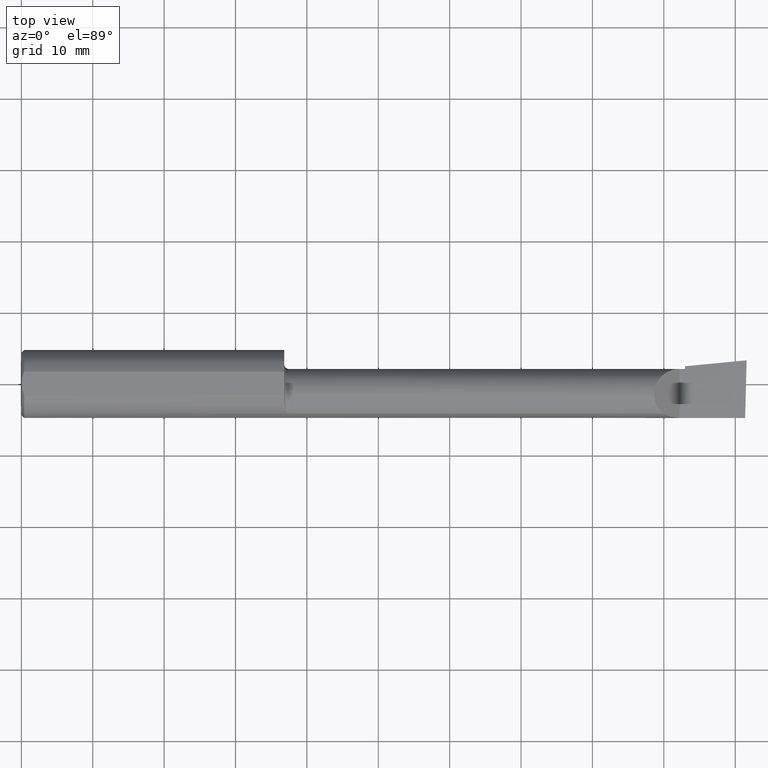
[diagram: clean part render]
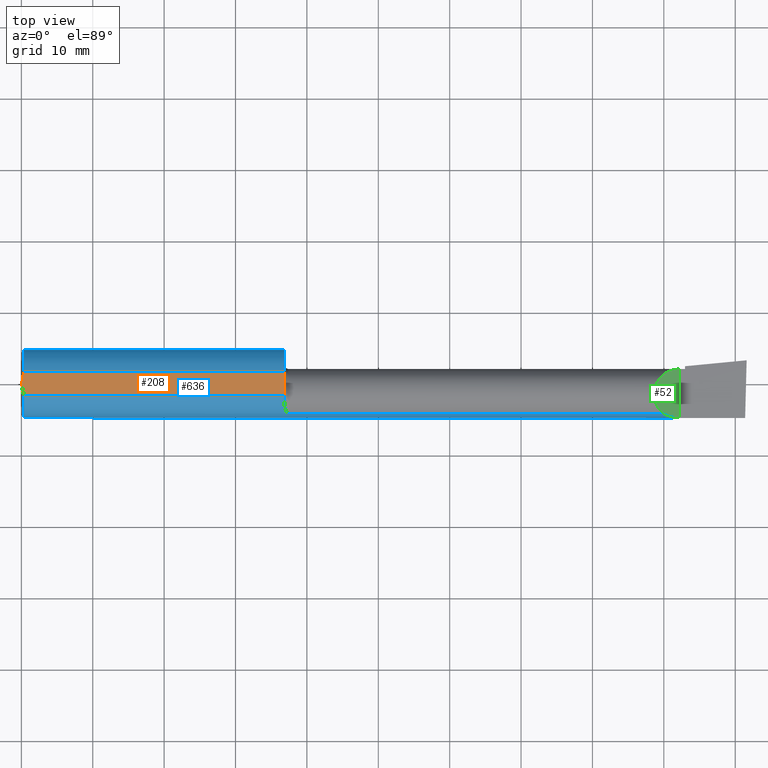
[diagram: same view with three faces highlighted in distinct colors, each labeled with its STEP entity id]
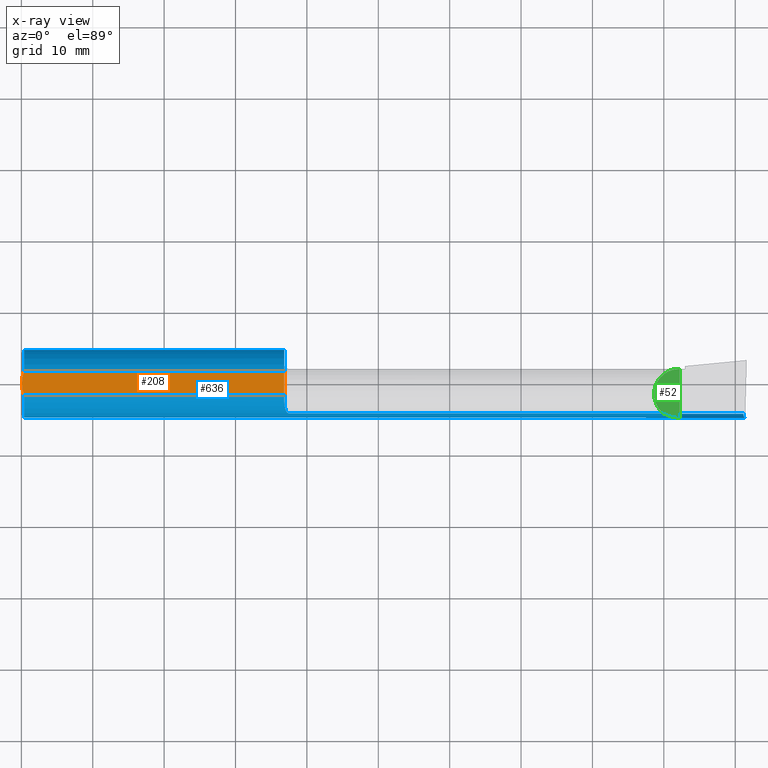
[diagram: x-ray of the same camera — body ghosted, the three highlighted faces saturated]
A machine part, top view with three faces highlighted in distinct colors.
The next image is the same camera in x-ray (body ghosted, the three faces saturated) — at least one of them is partly hidden behind the body in this view.
Their STEP definitions:

[orange] entity #208 — the highlighted planar face has unit normal (0, -0, -1).
#12 = CARTESIAN_POINT ( 'NONE',  ( 0.01499999999999997863, -0.06597272163553657975, 0.1753499999999999781 ) ) ;
#14 = DIRECTION ( 'NONE',  ( 0.000000000000000000, -1.438723400918613551E-16, -1.000000000000000000 ) ) ;
#26 = CARTESIAN_POINT ( 'NONE',  ( 0.008244775919947424855, 0.04453482769755855164, 0.1753499999999999504 ) ) ;
#56 = DIRECTION ( 'NONE',  ( 0.000000000000000000, 1.000000000000000000, -1.438723400918613551E-16 ) ) ;
#72 = ORIENTED_EDGE ( 'NONE', *, *, #648, .F. ) ;
#75 = CARTESIAN_POINT ( 'NONE',  ( 0.003000000000000169632, 0.01127363201155560934, 0.1753499999999999781 ) ) ;
#81 = VERTEX_POINT ( 'NONE', #200 ) ;
#107 = LINE ( 'NONE', #461, #186 ) ;
#113 = FACE_OUTER_BOUND ( 'NONE', #235, .T. ) ;
#116 = CARTESIAN_POINT ( 'NONE',  ( 0.01128414053810044941, -0.05542038647445821781, 0.1753499999999999781 ) ) ;
#130 = DIRECTION ( 'NONE',  ( 4.268512490100411279E-18, -1.000000000000000000, 1.438723400918613551E-16 ) ) ;
#186 = VECTOR ( 'NONE', #505, 39.37007874015748143 ) ;
#194 = CARTESIAN_POINT ( 'NONE',  ( 1.450000000000000178, 0.06597272163553663527, 0.1753499999999999781 ) ) ;
#200 = CARTESIAN_POINT ( 'NONE',  ( 1.450000000000000178, -0.06597272163553666302, 0.1753499999999999781 ) ) ;
#203 = EDGE_CURVE ( 'NONE', #430, #406, #107, .T. ) ;
#208 = ADVANCED_FACE ( 'NONE', ( #113 ), #458, .F. ) ;
#227 = ORIENTED_EDGE ( 'NONE', *, *, #203, .F. ) ;
#235 = EDGE_LOOP ( 'NONE', ( #439, #227, #647, #72, #517 ) ) ;
#247 = DIRECTION ( 'NONE',  ( -1.000000000000000000, -0.000000000000000000, -0.000000000000000000 ) ) ;
#279 = CARTESIAN_POINT ( 'NONE',  ( 0.004115035183746292881, 0.02255629470626744487, 0.1753499999999999781 ) ) ;
#284 = CARTESIAN_POINT ( 'NONE',  ( 1.450000000000000178, 0.2373500000000000332, 0.1753499999999999504 ) ) ;
#299 = EDGE_CURVE ( 'NONE', #406, #81, #624, .T. ) ;
#314 = CARTESIAN_POINT ( 'NONE',  ( 0.004093196532652216939, -0.02240707710020816909, 0.1753499999999999504 ) ) ;
#318 = VECTOR ( 'NONE', #247, 39.37007874015748143 ) ;
#333 = CARTESIAN_POINT ( 'NONE',  ( 0.01125230581755086272, 0.05532998191409922023, 0.1753500000000000059 ) ) ;
#339 = EDGE_CURVE ( 'NONE', #344, #430, #393, .T. ) ;
#344 = VERTEX_POINT ( 'NONE', #484 ) ;
#370 = EDGE_CURVE ( 'NONE', #81, #485, #374, .T. ) ;
#372 = AXIS2_PLACEMENT_3D ( 'NONE', #415, #14, #56 ) ;
#374 = LINE ( 'NONE', #570, #318 ) ;
#393 = B_SPLINE_CURVE_WITH_KNOTS ( 'NONE', 3,
 ( #477, #75, #279, #26, #333, #481 ),
 .UNSPECIFIED., .F., .F.,
 ( 4, 2, 4 ),
 ( 0.003480013901590607410, 0.004330767971208083697, 0.005181522040825559984 ),
 .UNSPECIFIED. ) ;
#406 = VERTEX_POINT ( 'NONE', #194 ) ;
#414 = CARTESIAN_POINT ( 'NONE',  ( 0.008227791779583789808, -0.04447712204611815878, 0.1753499999999999781 ) ) ;
#415 = CARTESIAN_POINT ( 'NONE',  ( 4.000000000000000000, 0.2373500000000000332, 0.1753499999999999504 ) ) ;
#430 = VERTEX_POINT ( 'NONE', #438 ) ;
#438 = CARTESIAN_POINT ( 'NONE',  ( 0.01499999999999999424, 0.06597272163553663527, 0.1753499999999999781 ) ) ;
#439 = ORIENTED_EDGE ( 'NONE', *, *, #299, .F. ) ;
#449 = CARTESIAN_POINT ( 'NONE',  ( 0.003000000000000218638, 2.334609556160449697E-17, 0.1753499999999999781 ) ) ;
#458 = PLANE ( 'NONE',  #372 ) ;
#461 = CARTESIAN_POINT ( 'NONE',  ( 0.000000000000000000, 0.06597272163553663527, 0.1753499999999999781 ) ) ;
#477 = CARTESIAN_POINT ( 'NONE',  ( 0.003000000000000218638, 2.334609556160449697E-17, 0.1753499999999999781 ) ) ;
#481 = CARTESIAN_POINT ( 'NONE',  ( 0.01499999999999999424, 0.06597272163553663527, 0.1753499999999999781 ) ) ;
#483 = B_SPLINE_CURVE_WITH_KNOTS ( 'NONE', 3,
 ( #12, #116, #414, #314, #514, #449 ),
 .UNSPECIFIED., .F., .F.,
 ( 4, 2, 4 ),
 ( 0.001779942938356815062, 0.002629978419973711019, 0.003480013901590607410 ),
 .UNSPECIFIED. ) ;
#484 = CARTESIAN_POINT ( 'NONE',  ( 0.003000000000000218638, 2.334609556160449697E-17, 0.1753499999999999781 ) ) ;
#485 = VERTEX_POINT ( 'NONE', #593 ) ;
#505 = DIRECTION ( 'NONE',  ( 1.000000000000000000, 0.000000000000000000, 0.000000000000000000 ) ) ;
#514 = CARTESIAN_POINT ( 'NONE',  ( 0.003000000000000172667, -0.01126410975715121283, 0.1753500000000000059 ) ) ;
#517 = ORIENTED_EDGE ( 'NONE', *, *, #370, .F. ) ;
#537 = VECTOR ( 'NONE', #130, 39.37007874015748143 ) ;
#570 = CARTESIAN_POINT ( 'NONE',  ( 0.000000000000000000, -0.06597272163553657975, 0.1753499999999999781 ) ) ;
#593 = CARTESIAN_POINT ( 'NONE',  ( 0.01499999999999997863, -0.06597272163553657975, 0.1753499999999999781 ) ) ;
#624 = LINE ( 'NONE', #284, #537 ) ;
#647 = ORIENTED_EDGE ( 'NONE', *, *, #339, .F. ) ;
#648 = EDGE_CURVE ( 'NONE', #485, #344, #483, .T. ) ;

[blue] entity #636 — the highlighted cylindrical surface (edge-blend (fillet) strip) has radius 4.7587 mm, axis along (-1, -0, -0).
#1 = DIRECTION ( 'NONE',  ( 0.000000000000000000, 1.000000000000000000, 0.000000000000000000 ) ) ;
#22 = CARTESIAN_POINT ( 'NONE',  ( 2.567499999999999893, -0.1635956445993030639, 0.09130436773856169530 ) ) ;
#23 = AXIS2_PLACEMENT_3D ( 'NONE', #399, #215, #1 ) ;
#31 = VERTEX_POINT ( 'NONE', #441 ) ;
#35 = EDGE_CURVE ( 'NONE', #501, #383, #623, .T. ) ;
#61 = FACE_OUTER_BOUND ( 'NONE', #466, .T. ) ;
#65 = CARTESIAN_POINT ( 'NONE',  ( 1.451891754936545098, -0.1247344934163571728, 0.1400506178720497541 ) ) ;
#68 = CARTESIAN_POINT ( 'NONE',  ( 3.566758987970638728, -0.1792580844883770730, 0.06324101202936149857 ) ) ;
#69 = ORIENTED_EDGE ( 'NONE', *, *, #524, .F. ) ;
#71 = CARTESIAN_POINT ( 'NONE',  ( 3.597861799102314517, -0.1873500000000000165, 0.03213820089768516797 ) ) ;
#81 = VERTEX_POINT ( 'NONE', #200 ) ;
#82 = CARTESIAN_POINT ( 'NONE',  ( 1.467975941902153192, -0.1612443294219083612, -0.09540922431498155554 ) ) ;
#89 = CIRCLE ( 'NONE', #23, 0.1873499999999999888 ) ;
#93 = ORIENTED_EDGE ( 'NONE', *, *, #495, .F. ) ;
#95 = VERTEX_POINT ( 'NONE', #205 ) ;
#107 = LINE ( 'NONE', #461, #186 ) ;
#112 = CARTESIAN_POINT ( 'NONE',  ( 0.000000000000000000, 0.000000000000000000, 0.000000000000000000 ) ) ;
#133 = CARTESIAN_POINT ( 'NONE',  ( 1.450384441902395238, -0.1115101367984843439, -0.1507946173152220348 ) ) ;
#145 = AXIS2_PLACEMENT_3D ( 'NONE', #112, #265, #460 ) ;
#155 = ORIENTED_EDGE ( 'NONE', *, *, #330, .F. ) ;
#158 = CARTESIAN_POINT ( 'NONE',  ( 1.450000000000000178, -0.1045012500212958440, 0.1557348687830031608 ) ) ;
#162 = ORIENTED_EDGE ( 'NONE', *, *, #217, .F. ) ;
#167 = EDGE_CURVE ( 'NONE', #482, #285, #305, .T. ) ;
#168 = LINE ( 'NONE', #360, #578 ) ;
#171 = CARTESIAN_POINT ( 'NONE',  ( 3.629999999999999893, -0.1873499999999999888, -1.383850883036508279E-16 ) ) ;
#172 = CIRCLE ( 'NONE', #516, 0.1873499999999999888 ) ;
#186 = VECTOR ( 'NONE', #505, 39.37007874015748143 ) ;
#194 = CARTESIAN_POINT ( 'NONE',  ( 1.450000000000000178, 0.06597272163553663527, 0.1753499999999999781 ) ) ;
#200 = CARTESIAN_POINT ( 'NONE',  ( 1.450000000000000178, -0.06597272163553666302, 0.1753499999999999781 ) ) ;
#201 = DIRECTION ( 'NONE',  ( -1.000000000000000000, -0.000000000000000000, -0.000000000000000000 ) ) ;
#203 = EDGE_CURVE ( 'NONE', #430, #406, #107, .T. ) ;
#205 = CARTESIAN_POINT ( 'NONE',  ( 3.538695632261437130, -0.1635956445993028974, 0.09130436773856195898 ) ) ;
#210 = ORIENTED_EDGE ( 'NONE', *, *, #283, .F. ) ;
#212 = CARTESIAN_POINT ( 'NONE',  ( 1.453025912205683667, -0.1310442973014118717, 0.1341609063345039488 ) ) ;
#215 = DIRECTION ( 'NONE',  ( 1.000000000000000000, 4.268512490100411279E-18, 0.000000000000000000 ) ) ;
#217 = EDGE_CURVE ( 'NONE', #81, #482, #172, .T. ) ;
#220 = DIRECTION ( 'NONE',  ( 1.000000000000000000, 4.268512490100411279E-18, 0.000000000000000000 ) ) ;
#223 = CARTESIAN_POINT ( 'NONE',  ( 1.466855994529494112, -0.1603175578889972364, 0.09696363432848399688 ) ) ;
#226 = CARTESIAN_POINT ( 'NONE',  ( 1.458068207442170250, -0.1478915270140213900, -0.1153063024254919050 ) ) ;
#230 = EDGE_CURVE ( 'NONE', #459, #95, #595, .T. ) ;
#236 = CARTESIAN_POINT ( 'NONE',  ( 3.538695632261437130, -0.1635956445993028974, 0.09130436773856195898 ) ) ;
#241 = CARTESIAN_POINT ( 'NONE',  ( 3.981080296960509468, -0.1635956445993030639, -0.09130436773856169530 ) ) ;
#244 = DIRECTION ( 'NONE',  ( -1.000000000000000000, -0.000000000000000000, -0.000000000000000000 ) ) ;
#247 = DIRECTION ( 'NONE',  ( -1.000000000000000000, -0.000000000000000000, -0.000000000000000000 ) ) ;
#249 = VECTOR ( 'NONE', #244, 39.37007874015748143 ) ;
#255 = CARTESIAN_POINT ( 'NONE',  ( 1.468001859868116821, -0.1612625562479374497, 0.09537826053888119604 ) ) ;
#259 = DIRECTION ( 'NONE',  ( 0.000000000000000000, 1.000000000000000000, 0.000000000000000000 ) ) ;
#263 = CARTESIAN_POINT ( 'NONE',  ( 1.450000000000000178, -0.09715400696864165409, 0.1601908905959921192 ) ) ;
#265 = DIRECTION ( 'NONE',  ( -1.000000000000000000, -0.000000000000000000, -0.000000000000000000 ) ) ;
#268 = VECTOR ( 'NONE', #627, 39.37007874015748143 ) ;
#270 = CARTESIAN_POINT ( 'NONE',  ( 1.462204638458736827, -0.1550630761760526943, 0.1052254855377557363 ) ) ;
#283 = EDGE_CURVE ( 'NONE', #285, #95, #426, .T. ) ;
#285 = VERTEX_POINT ( 'NONE', #321 ) ;
#289 = CIRCLE ( 'NONE', #588, 0.1873499999999999888 ) ;
#290 = CARTESIAN_POINT ( 'NONE',  ( 3.991672876940992154, -0.1873499999999999888, -1.700367819150454743E-16 ) ) ;
#295 = CARTESIAN_POINT ( 'NONE',  ( 3.991672876940992154, -0.1873499999999999888, -1.700367819150454743E-16 ) ) ;
#298 = DIRECTION ( 'NONE',  ( 0.000000000000000000, 0.000000000000000000, 1.000000000000000000 ) ) ;
#301 = CYLINDRICAL_SURFACE ( 'NONE', #145, 0.1873499999999999888 ) ;
#302 = CARTESIAN_POINT ( 'NONE',  ( 1.456142321956750862, -0.1426151417460934934, 0.1217894822571228691 ) ) ;
#303 = DIRECTION ( 'NONE',  ( -1.000000000000000000, -4.268512490100411279E-18, -0.000000000000000000 ) ) ;
#305 = B_SPLINE_CURVE_WITH_KNOTS ( 'NONE', 3,
 ( #263, #158, #316, #65, #212, #302, #358, #270, #408, #223, #255, #420, #361, #312 ),
 .UNSPECIFIED., .F., .F.,
 ( 4, 2, 2, 2, 2, 2, 4 ),
 ( 0.0002471551878304273061, 0.0008987327522055692762, 0.001550310316580711355, 0.002201887880955853000, 0.002527676663143422955, 0.002690571054237208149, 0.002853465445330993343 ),
 .UNSPECIFIED. ) ;
#311 = DIRECTION ( 'NONE',  ( -1.000000000000000000, -0.000000000000000000, -0.000000000000000000 ) ) ;
#312 = CARTESIAN_POINT ( 'NONE',  ( 1.474999999999999867, -0.1635956445993032859, 0.09130436773856114019 ) ) ;
#316 = CARTESIAN_POINT ( 'NONE',  ( 1.450383728133729955, -0.1114837668894155670, 0.1508119329971093214 ) ) ;
#318 = VECTOR ( 'NONE', #247, 39.37007874015748143 ) ;
#319 = AXIS2_PLACEMENT_3D ( 'NONE', #558, #311, #510 ) ;
#321 = CARTESIAN_POINT ( 'NONE',  ( 1.474999999999999867, -0.1635956445993032859, 0.09130436773856114019 ) ) ;
#328 = CARTESIAN_POINT ( 'NONE',  ( 1.470881499230869860, -0.1628722075910995493, -0.09260290410947796813 ) ) ;
#329 = ORIENTED_EDGE ( 'NONE', *, *, #565, .F. ) ;
#330 = EDGE_CURVE ( 'NONE', #527, #31, #628, .T. ) ;
#336 = CARTESIAN_POINT ( 'NONE',  ( 1.474999999999999867, -0.1635956445993035080, -0.09130436773856089039 ) ) ;
#348 = CARTESIAN_POINT ( 'NONE',  ( 3.981080296960509468, -0.1635956445993030639, -0.09130436773856169530 ) ) ;
#349 = CARTESIAN_POINT ( 'NONE',  ( 0.01499999999999999424, 0.000000000000000000, -0.1873499999999999888 ) ) ;
#352 = CARTESIAN_POINT ( 'NONE',  ( 3.629999999999999893, -0.1873499999999999888, -1.383850883036508279E-16 ) ) ;
#353 = CARTESIAN_POINT ( 'NONE',  ( 3.987725449370725261, -0.1873499999999999610, -0.03213820089768520960 ) ) ;
#358 = CARTESIAN_POINT ( 'NONE',  ( 1.458072954143140088, -0.1479074971576202768, 0.1152872342625226587 ) ) ;
#360 = CARTESIAN_POINT ( 'NONE',  ( 2.567499999999999893, -0.1635956445993030639, -0.09130436773856169530 ) ) ;
#361 = CARTESIAN_POINT ( 'NONE',  ( 1.472800914500664859, -0.1635956445997551467, 0.09130436773775187087 ) ) ;
#366 = ORIENTED_EDGE ( 'NONE', *, *, #630, .F. ) ;
#370 = EDGE_CURVE ( 'NONE', #81, #485, #374, .T. ) ;
#374 = LINE ( 'NONE', #570, #318 ) ;
#375 = ORIENTED_EDGE ( 'NONE', *, *, #35, .T. ) ;
#379 = CARTESIAN_POINT ( 'NONE',  ( 1.450000000000000178, -0.09715400696864165409, -0.1601908905959921192 ) ) ;
#382 = CARTESIAN_POINT ( 'NONE',  ( 1.466814909379088760, -0.1602818635245161771, -0.09702252612905236384 ) ) ;
#383 = VERTEX_POINT ( 'NONE', #295 ) ;
#391 = CARTESIAN_POINT ( 'NONE',  ( 1.565719721143680372E-32, -0.1873499999999999610, 1.790477306702064235E-16 ) ) ;
#394 = LINE ( 'NONE', #391, #249 ) ;
#396 = EDGE_CURVE ( 'NONE', #383, #459, #394, .T. ) ;
#399 = CARTESIAN_POINT ( 'NONE',  ( 1.450000000000000178, 0.000000000000000000, 0.000000000000000000 ) ) ;
#406 = VERTEX_POINT ( 'NONE', #194 ) ;
#408 = CARTESIAN_POINT ( 'NONE',  ( 1.463764108097883376, -0.1573043405450774979, 0.1018329020719630079 ) ) ;
#420 = CARTESIAN_POINT ( 'NONE',  ( 1.470903862568969211, -0.1628809688430624958, 0.09258733509388421268 ) ) ;
#426 = LINE ( 'NONE', #22, #268 ) ;
#427 = ORIENTED_EDGE ( 'NONE', *, *, #396, .T. ) ;
#429 = CARTESIAN_POINT ( 'NONE',  ( 1.451903396790307443, -0.1248165254919065270, -0.1399798634953942911 ) ) ;
#430 = VERTEX_POINT ( 'NONE', #438 ) ;
#438 = CARTESIAN_POINT ( 'NONE',  ( 0.01499999999999999424, 0.06597272163553663527, 0.1753499999999999781 ) ) ;
#441 = CARTESIAN_POINT ( 'NONE',  ( 1.450000000000000178, -0.09715400696864165409, -0.1601908905959921192 ) ) ;
#453 = ORIENTED_EDGE ( 'NONE', *, *, #203, .T. ) ;
#456 = VERTEX_POINT ( 'NONE', #349 ) ;
#459 = VERTEX_POINT ( 'NONE', #352 ) ;
#460 = DIRECTION ( 'NONE',  ( 0.000000000000000000, 0.000000000000000000, 1.000000000000000000 ) ) ;
#461 = CARTESIAN_POINT ( 'NONE',  ( 0.000000000000000000, 0.06597272163553663527, 0.1753499999999999781 ) ) ;
#466 = EDGE_LOOP ( 'NONE', ( #329, #375, #427, #549, #210, #582, #162, #469, #366, #93, #453, #69, #155 ) ) ;
#468 = CARTESIAN_POINT ( 'NONE',  ( 1.463743174082349663, -0.1572750258711012872, -0.1018777902325207346 ) ) ;
#469 = ORIENTED_EDGE ( 'NONE', *, *, #370, .T. ) ;
#472 = CARTESIAN_POINT ( 'NONE',  ( 1.462184598714912909, -0.1550322129197700405, -0.1052705638704077434 ) ) ;
#482 = VERTEX_POINT ( 'NONE', #544 ) ;
#485 = VERTEX_POINT ( 'NONE', #593 ) ;
#495 = EDGE_CURVE ( 'NONE', #430, #456, #289, .T. ) ;
#501 = VERTEX_POINT ( 'NONE', #241 ) ;
#505 = DIRECTION ( 'NONE',  ( 1.000000000000000000, 0.000000000000000000, 0.000000000000000000 ) ) ;
#508 = CARTESIAN_POINT ( 'NONE',  ( 1.474999999999999867, -0.1635956445993035080, -0.09130436773856089039 ) ) ;
#509 = CARTESIAN_POINT ( 'NONE',  ( 1.450000000000000178, 0.000000000000000000, 0.000000000000000000 ) ) ;
#510 = DIRECTION ( 'NONE',  ( 0.000000000000000000, 0.000000000000000000, 1.000000000000000000 ) ) ;
#516 = AXIS2_PLACEMENT_3D ( 'NONE', #509, #220, #259 ) ;
#519 = CARTESIAN_POINT ( 'NONE',  ( 1.472779935319434852, -0.1635956445993034525, -0.09130436773856107080 ) ) ;
#524 = EDGE_CURVE ( 'NONE', #31, #406, #89, .T. ) ;
#526 = CARTESIAN_POINT ( 'NONE',  ( 1.453041727949557549, -0.1311116946065055688, -0.1340922927843366530 ) ) ;
#527 = VERTEX_POINT ( 'NONE', #508 ) ;
#533 = CARTESIAN_POINT ( 'NONE',  ( 1.450000000000000400, -0.1045082199249685040, -0.1557306416133590332 ) ) ;
#544 = CARTESIAN_POINT ( 'NONE',  ( 1.450000000000000178, -0.09715400696864165409, 0.1601908905959921192 ) ) ;
#545 = CARTESIAN_POINT ( 'NONE',  ( 3.984117089522338340, -0.1792580844883770452, -0.06324101202936138755 ) ) ;
#549 = ORIENTED_EDGE ( 'NONE', *, *, #230, .T. ) ;
#558 = CARTESIAN_POINT ( 'NONE',  ( 0.01499999999999999424, 0.000000000000000000, 0.000000000000000000 ) ) ;
#565 = EDGE_CURVE ( 'NONE', #501, #527, #168, .T. ) ;
#570 = CARTESIAN_POINT ( 'NONE',  ( 0.000000000000000000, -0.06597272163553657975, 0.1753499999999999781 ) ) ;
#578 = VECTOR ( 'NONE', #303, 39.37007874015748143 ) ;
#581 = CARTESIAN_POINT ( 'NONE',  ( 1.456145841430604548, -0.1426194794824342527, -0.1217813759115463496 ) ) ;
#582 = ORIENTED_EDGE ( 'NONE', *, *, #167, .F. ) ;
#588 = AXIS2_PLACEMENT_3D ( 'NONE', #646, #201, #298 ) ;
#593 = CARTESIAN_POINT ( 'NONE',  ( 0.01499999999999997863, -0.06597272163553657975, 0.1753499999999999781 ) ) ;
#595 =( BOUNDED_CURVE ( )  B_SPLINE_CURVE ( 3, ( #171, #71, #68, #236 ),
 .UNSPECIFIED., .F., .T. ) 
 B_SPLINE_CURVE_WITH_KNOTS ( ( 4, 4 ),
 ( 4.712388980384689674, 5.221437360734126010 ),
 .UNSPECIFIED. ) 
 CURVE ( )  GEOMETRIC_REPRESENTATION_ITEM ( )  RATIONAL_B_SPLINE_CURVE ( ( 1.000000000000000000, 0.9785221379938656705, 0.9785221379938656705, 1.000000000000000000 ) ) 
 REPRESENTATION_ITEM ( '' )  );
#609 = CIRCLE ( 'NONE', #319, 0.1873499999999999888 ) ;
#623 =( BOUNDED_CURVE ( )  B_SPLINE_CURVE ( 3, ( #348, #545, #353, #290 ),
 .UNSPECIFIED., .F., .F. ) 
 B_SPLINE_CURVE_WITH_KNOTS ( ( 4, 4 ),
 ( 0.8516985021657665911, 1.360746882515200262 ),
 .UNSPECIFIED. ) 
 CURVE ( )  GEOMETRIC_REPRESENTATION_ITEM ( )  RATIONAL_B_SPLINE_CURVE ( ( 1.000000000000000000, 0.9785221379938657815, 0.9785221379938657815, 1.000000000000000000 ) ) 
 REPRESENTATION_ITEM ( '' )  );
#627 = DIRECTION ( 'NONE',  ( 1.000000000000000000, 4.268512490100411279E-18, 0.000000000000000000 ) ) ;
#628 = B_SPLINE_CURVE_WITH_KNOTS ( 'NONE', 3,
 ( #336, #519, #328, #82, #382, #468, #472, #226, #581, #526, #429, #133, #533, #379 ),
 .UNSPECIFIED., .F., .F.,
 ( 4, 2, 2, 2, 2, 2, 4 ),
 ( 1.968340875534775316E-07, 0.0001667114270246294124, 0.0003332260199617053547, 0.0006662552058358572936, 0.001332313577584152715, 0.001998371949332448244, 0.002664430321080743774 ),
 .UNSPECIFIED. ) ;
#630 = EDGE_CURVE ( 'NONE', #456, #485, #609, .T. ) ;
#636 = ADVANCED_FACE ( 'NONE', ( #61 ), #301, .T. ) ;
#646 = CARTESIAN_POINT ( 'NONE',  ( 0.01499999999999999424, 0.000000000000000000, 0.000000000000000000 ) ) ;

[green] entity #52 — the highlighted planar face has unit normal (-0.7071, 0, -0.7071).
#6 = DIRECTION ( 'NONE',  ( -0.000000000000000000, 1.000000000000000000, -0.000000000000000000 ) ) ;
#13 = AXIS2_PLACEMENT_3D ( 'NONE', #147, #248, #491 ) ;
#50 = CARTESIAN_POINT ( 'NONE',  ( 3.538695632261437130, -0.1635956445993028974, 0.09130436773856195898 ) ) ;
#52 = ADVANCED_FACE ( 'NONE', ( #641 ), #196, .F. ) ;
#63 = CARTESIAN_POINT ( 'NONE',  ( 3.629999999999999893, -0.2500000000000000555, -1.383850883036508279E-16 ) ) ;
#68 = CARTESIAN_POINT ( 'NONE',  ( 3.566758987970638728, -0.1792580844883770730, 0.06324101202936149857 ) ) ;
#71 = CARTESIAN_POINT ( 'NONE',  ( 3.597861799102314517, -0.1873500000000000165, 0.03213820089768516797 ) ) ;
#95 = VERTEX_POINT ( 'NONE', #205 ) ;
#147 = CARTESIAN_POINT ( 'NONE',  ( 3.629999999999999893, -0.2500000000000000555, -1.383850883036508279E-16 ) ) ;
#154 = CARTESIAN_POINT ( 'NONE',  ( 3.421229036482944075, -0.06260079402492414735, 0.2087709635170538203 ) ) ;
#171 = CARTESIAN_POINT ( 'NONE',  ( 3.629999999999999893, -0.1873499999999999888, -1.383850883036508279E-16 ) ) ;
#179 = CARTESIAN_POINT ( 'NONE',  ( 3.629999999999999893, 0.08264999999999983471, -1.383850883036508279E-16 ) ) ;
#196 = PLANE ( 'NONE',  #13 ) ;
#205 = CARTESIAN_POINT ( 'NONE',  ( 3.538695632261437130, -0.1635956445993028974, 0.09130436773856195898 ) ) ;
#230 = EDGE_CURVE ( 'NONE', #459, #95, #595, .T. ) ;
#236 = CARTESIAN_POINT ( 'NONE',  ( 3.538695632261437130, -0.1635956445993028974, 0.09130436773856195898 ) ) ;
#246 =( BOUNDED_CURVE ( )  B_SPLINE_CURVE ( 3, ( #50, #154, #611, #561 ),
 .UNSPECIFIED., .F., .F. ) 
 B_SPLINE_CURVE_WITH_KNOTS ( ( 4, 4 ),
 ( 5.422530673488459740, 7.853981633974483678 ),
 .UNSPECIFIED. ) 
 CURVE ( )  GEOMETRIC_REPRESENTATION_ITEM ( )  RATIONAL_B_SPLINE_CURVE ( ( 1.000000000000000000, 0.5651045289226863666, 0.5651045289226863666, 1.000000000000000000 ) ) 
 REPRESENTATION_ITEM ( '' )  );
#248 = DIRECTION ( 'NONE',  ( -0.7071067811865443531, 0.000000000000000000, -0.7071067811865507924 ) ) ;
#306 = VECTOR ( 'NONE', #6, 39.37007874015748143 ) ;
#313 = VERTEX_POINT ( 'NONE', #179 ) ;
#326 = ORIENTED_EDGE ( 'NONE', *, *, #586, .F. ) ;
#352 = CARTESIAN_POINT ( 'NONE',  ( 3.629999999999999893, -0.1873499999999999888, -1.383850883036508279E-16 ) ) ;
#392 = EDGE_LOOP ( 'NONE', ( #326, #416, #409 ) ) ;
#409 = ORIENTED_EDGE ( 'NONE', *, *, #521, .T. ) ;
#416 = ORIENTED_EDGE ( 'NONE', *, *, #230, .F. ) ;
#459 = VERTEX_POINT ( 'NONE', #352 ) ;
#491 = DIRECTION ( 'NONE',  ( -0.7071067811865507924, 0.000000000000000000, 0.7071067811865443531 ) ) ;
#504 = LINE ( 'NONE', #63, #306 ) ;
#521 = EDGE_CURVE ( 'NONE', #459, #313, #504, .T. ) ;
#561 = CARTESIAN_POINT ( 'NONE',  ( 3.629999999999999893, 0.08264999999999983471, -1.383850883036508279E-16 ) ) ;
#586 = EDGE_CURVE ( 'NONE', #95, #313, #246, .T. ) ;
#595 =( BOUNDED_CURVE ( )  B_SPLINE_CURVE ( 3, ( #171, #71, #68, #236 ),
 .UNSPECIFIED., .F., .T. ) 
 B_SPLINE_CURVE_WITH_KNOTS ( ( 4, 4 ),
 ( 4.712388980384689674, 5.221437360734126010 ),
 .UNSPECIFIED. ) 
 CURVE ( )  GEOMETRIC_REPRESENTATION_ITEM ( )  RATIONAL_B_SPLINE_CURVE ( ( 1.000000000000000000, 0.9785221379938656705, 0.9785221379938656705, 1.000000000000000000 ) ) 
 REPRESENTATION_ITEM ( '' )  );
#611 = CARTESIAN_POINT ( 'NONE',  ( 3.475085956200449022, 0.08265000000000011227, 0.1549140437995492614 ) ) ;
#641 = FACE_OUTER_BOUND ( 'NONE', #392, .T. ) ;